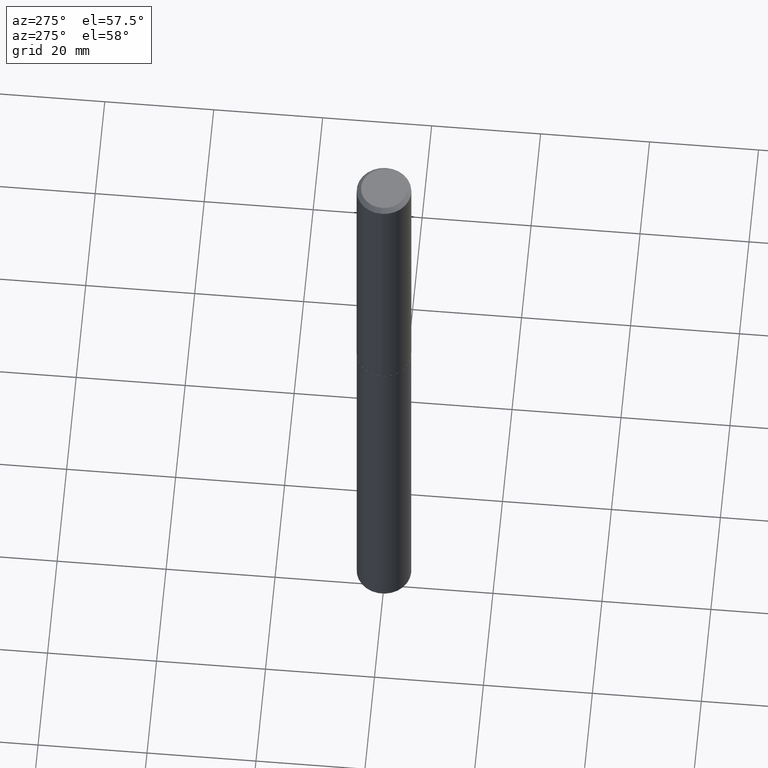
[diagram: clean part render]
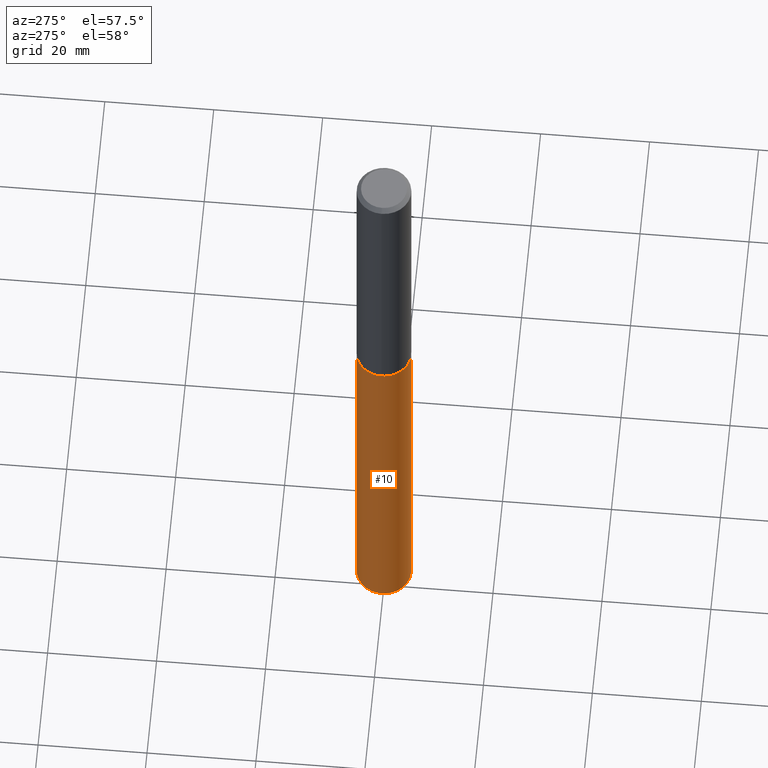
[diagram: same view with one face highlighted and labeled with its STEP entity id]
A machine part, auxiliary view. The second image highlights one B-rep face of the part: STEP entity #10.
In plain terms, the highlighted cylindrical surface (edge-blend (fillet) strip) has radius 5 mm, axis along (-0, 0, 1).
Its self-contained STEP definition (entity closure, byte-faithful):
#2 = DIRECTION ( 'NONE',  ( -2.445583250682407227E-29, 3.491317447809277816E-15, 1.000000000000000000 ) ) ;
#9 = DIRECTION ( 'NONE',  ( -6.982962677686265133E-15, -1.000000000000000000, 4.163344669033674845E-15 ) ) ;
#10 = ADVANCED_FACE ( 'NONE', ( #54 ), #164, .T. ) ;
#22 = EDGE_CURVE ( 'NONE', #194, #33, #343, .T. ) ;
#33 = VERTEX_POINT ( 'NONE', #37 ) ;
#37 = CARTESIAN_POINT ( 'NONE',  ( 1.398703375343882428E-15, 0.1968499999999922812, -2.204700000000001658 ) ) ;
#54 = FACE_OUTER_BOUND ( 'NONE', #192, .T. ) ;
#57 = ORIENTED_EDGE ( 'NONE', *, *, #147, .T. ) ;
#76 = DIRECTION ( 'NONE',  ( -6.982962677686265133E-15, -1.000000000000000000, 5.551126225378232601E-15 ) ) ;
#89 = AXIS2_PLACEMENT_3D ( 'NONE', #321, #128, #374 ) ;
#93 = CARTESIAN_POINT ( 'NONE',  ( 1.398703375343882428E-15, 0.1968499999999821504, -5.117920587144427103 ) ) ;
#103 = DIRECTION ( 'NONE',  ( -2.445583250682407227E-29, 3.491317447809277816E-15, 1.000000000000000000 ) ) ;
#116 = LINE ( 'NONE', #334, #388 ) ;
#120 = VERTEX_POINT ( 'NONE', #161 ) ;
#128 = DIRECTION ( 'NONE',  ( -2.445583250682407227E-29, 3.491317447809277816E-15, 1.000000000000000000 ) ) ;
#144 = VERTEX_POINT ( 'NONE', #344 ) ;
#147 = EDGE_CURVE ( 'NONE', #194, #120, #266, .T. ) ;
#156 = ORIENTED_EDGE ( 'NONE', *, *, #166, .T. ) ;
#161 = CARTESIAN_POINT ( 'NONE',  ( -1.374596203102416574E-15, -0.1968500000000178718, -5.117920587144425326 ) ) ;
#164 = CYLINDRICAL_SURFACE ( 'NONE', #89, 0.1968500000000000250 ) ;
#166 = EDGE_CURVE ( 'NONE', #120, #144, #116, .T. ) ;
#185 = CARTESIAN_POINT ( 'NONE',  ( 1.398703375343810839E-15, 0.1968499999999923367, -2.204700000000001658 ) ) ;
#190 = CARTESIAN_POINT ( 'NONE',  ( 5.391525076996372398E-29, -7.697668907747486281E-15, -2.204700000000000770 ) ) ;
#192 = EDGE_LOOP ( 'NONE', ( #244, #57, #156, #326 ) ) ;
#194 = VERTEX_POINT ( 'NONE', #93 ) ;
#202 = CIRCLE ( 'NONE', #274, 0.1968500000000000250 ) ;
#230 = CARTESIAN_POINT ( 'NONE',  ( 1.251604855045994571E-28, -1.786864677296200502E-14, -5.117920587144426214 ) ) ;
#244 = ORIENTED_EDGE ( 'NONE', *, *, #22, .F. ) ;
#266 = CIRCLE ( 'NONE', #305, 0.1968500000000000250 ) ;
#268 = EDGE_CURVE ( 'NONE', #33, #144, #202, .T. ) ;
#274 = AXIS2_PLACEMENT_3D ( 'NONE', #190, #377, #9 ) ;
#305 = AXIS2_PLACEMENT_3D ( 'NONE', #230, #103, #76 ) ;
#313 = VECTOR ( 'NONE', #384, 39.37007874015748143 ) ;
#321 = CARTESIAN_POINT ( 'NONE',  ( 5.391525076996372398E-29, -7.697668907747486281E-15, -2.204700000000000770 ) ) ;
#326 = ORIENTED_EDGE ( 'NONE', *, *, #268, .F. ) ;
#334 = CARTESIAN_POINT ( 'NONE',  ( -1.374596203102487571E-15, -0.1968500000000076855, -2.204699999999999882 ) ) ;
#343 = LINE ( 'NONE', #185, #313 ) ;
#344 = CARTESIAN_POINT ( 'NONE',  ( -1.374596203102487571E-15, -0.1968500000000076855, -2.204699999999999882 ) ) ;
#374 = DIRECTION ( 'NONE',  ( -6.982962677686265133E-15, -1.000000000000000000, 4.163344669033674845E-15 ) ) ;
#377 = DIRECTION ( 'NONE',  ( -2.445583250682407227E-29, 3.491317447809277816E-15, 1.000000000000000000 ) ) ;
#384 = DIRECTION ( 'NONE',  ( -2.445583250682407227E-29, 3.491317447809277816E-15, 1.000000000000000000 ) ) ;
#388 = VECTOR ( 'NONE', #2, 39.37007874015748143 ) ;